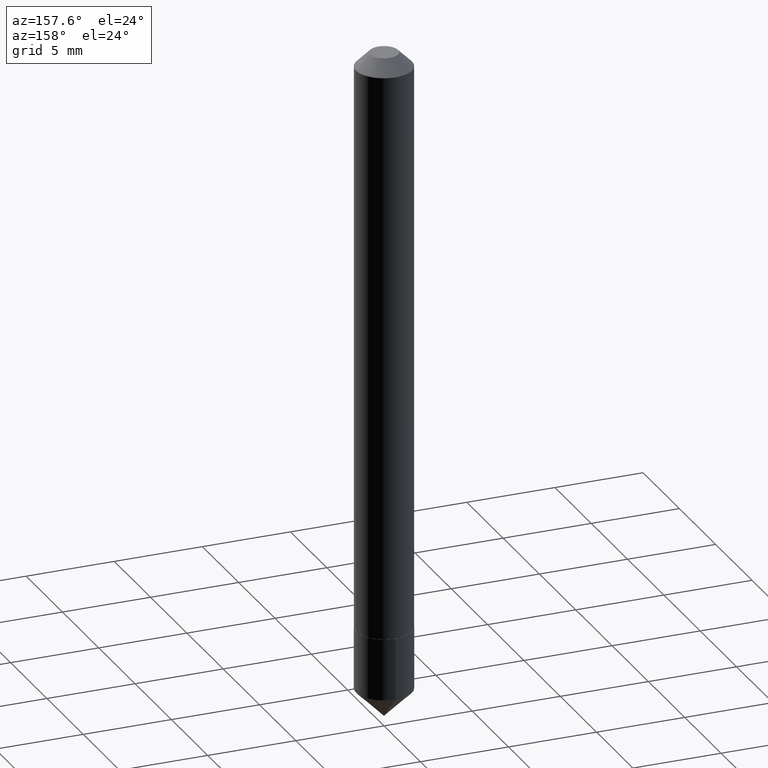
[diagram: clean part render]
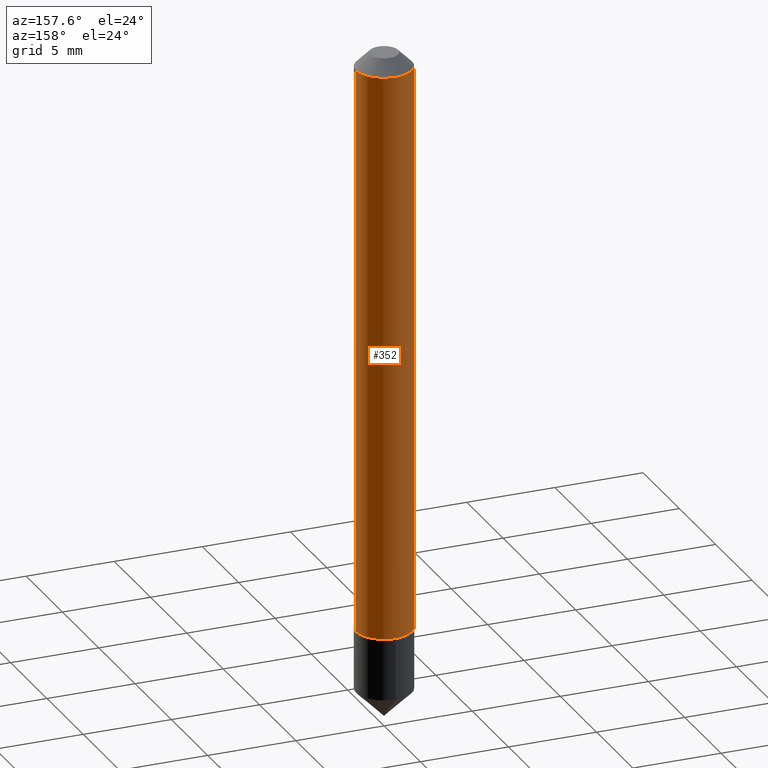
[diagram: same view with one face highlighted and labeled with its STEP entity id]
A machine part, auxiliary view. The second image highlights one B-rep face of the part: STEP entity #352.
In plain terms, the highlighted cylindrical surface (edge-blend (fillet) strip) has radius 1.5875 mm, axis along (-0, 0, 1).
Its self-contained STEP definition (entity closure, byte-faithful):
#3 = EDGE_CURVE ( 'NONE', #390, #132, #250, .T. ) ;
#6 = CYLINDRICAL_SURFACE ( 'NONE', #120, 0.06250000000000012490 ) ;
#7 = VERTEX_POINT ( 'NONE', #96 ) ;
#17 = CARTESIAN_POINT ( 'NONE',  ( 0.06250000000000022204, -4.973615167182060094E-15, -1.299499999999999877 ) ) ;
#23 = LINE ( 'NONE', #200, #297 ) ;
#49 = DIRECTION ( 'NONE',  ( -2.445468806185136877E-29, 3.491481338843145188E-15, 1.000000000000000000 ) ) ;
#52 = DIRECTION ( 'NONE',  ( -2.445468806185136877E-29, 3.491481338843145188E-15, 1.000000000000000000 ) ) ;
#64 = FACE_OUTER_BOUND ( 'NONE', #165, .T. ) ;
#67 = ORIENTED_EDGE ( 'NONE', *, *, #205, .T. ) ;
#69 = CARTESIAN_POINT ( 'NONE',  ( 7.642090019328602662E-31, -1.091087918388490267E-16, -0.03125000000000020817 ) ) ;
#73 = ORIENTED_EDGE ( 'NONE', *, *, #303, .T. ) ;
#75 = ORIENTED_EDGE ( 'NONE', *, *, #3, .F. ) ;
#77 = AXIS2_PLACEMENT_3D ( 'NONE', #69, #217, #243 ) ;
#92 = CARTESIAN_POINT ( 'NONE',  ( 0.000000000000000000, 0.000000000000000000, 0.000000000000000000 ) ) ;
#96 = CARTESIAN_POINT ( 'NONE',  ( -0.06250000000000022204, -4.093090789976602653E-15, -1.299499999999999877 ) ) ;
#101 = VECTOR ( 'NONE', #49, 39.37007874015748143 ) ;
#105 = EDGE_CURVE ( 'NONE', #235, #390, #23, .T. ) ;
#120 = AXIS2_PLACEMENT_3D ( 'NONE', #92, #387, #268 ) ;
#122 = DIRECTION ( 'NONE',  ( 1.000000000000000000, -6.982962677686269866E-15, 0.000000000000000000 ) ) ;
#132 = VERTEX_POINT ( 'NONE', #320 ) ;
#165 = EDGE_LOOP ( 'NONE', ( #73, #67, #75, #342 ) ) ;
#196 = CARTESIAN_POINT ( 'NONE',  ( -0.06250000000000012490, 4.440892098500635036E-16, -3.074334431409321719E-30 ) ) ;
#200 = CARTESIAN_POINT ( 'NONE',  ( 0.06250000000000012490, -4.364351673553925076E-16, 3.047610484872465476E-30 ) ) ;
#203 = AXIS2_PLACEMENT_3D ( 'NONE', #367, #279, #122 ) ;
#205 = EDGE_CURVE ( 'NONE', #7, #132, #357, .T. ) ;
#217 = DIRECTION ( 'NONE',  ( -2.445468806185136597E-29, 3.491481338843145583E-15, 1.000000000000000000 ) ) ;
#235 = VERTEX_POINT ( 'NONE', #17 ) ;
#243 = DIRECTION ( 'NONE',  ( 1.000000000000000000, -6.982962677686265922E-15, 0.000000000000000000 ) ) ;
#250 = CIRCLE ( 'NONE', #77, 0.06250000000000001388 ) ;
#268 = DIRECTION ( 'NONE',  ( 1.000000000000000000, -6.982962677686265922E-15, 4.876176775795935232E-29 ) ) ;
#278 = CARTESIAN_POINT ( 'NONE',  ( 0.06250000000000001388, -5.455439591942407701E-16, -0.03125000000000020817 ) ) ;
#279 = DIRECTION ( 'NONE',  ( -2.445468806185136597E-29, 3.491481338843145583E-15, 1.000000000000000000 ) ) ;
#297 = VECTOR ( 'NONE', #52, 39.37007874015748143 ) ;
#303 = EDGE_CURVE ( 'NONE', #235, #7, #338, .T. ) ;
#320 = CARTESIAN_POINT ( 'NONE',  ( -0.06250000000000001388, -1.879055185982692991E-15, -0.03125000000000020817 ) ) ;
#338 = CIRCLE ( 'NONE', #203, 0.06250000000000022204 ) ;
#342 = ORIENTED_EDGE ( 'NONE', *, *, #105, .F. ) ;
#352 = ADVANCED_FACE ( 'NONE', ( #64 ), #6, .T. ) ;
#357 = LINE ( 'NONE', #196, #101 ) ;
#367 = CARTESIAN_POINT ( 'NONE',  ( 3.177886713637585111E-29, -4.537179999826666847E-15, -1.299499999999999877 ) ) ;
#387 = DIRECTION ( 'NONE',  ( -2.445468806185136597E-29, 3.491481338843145583E-15, 1.000000000000000000 ) ) ;
#390 = VERTEX_POINT ( 'NONE', #278 ) ;